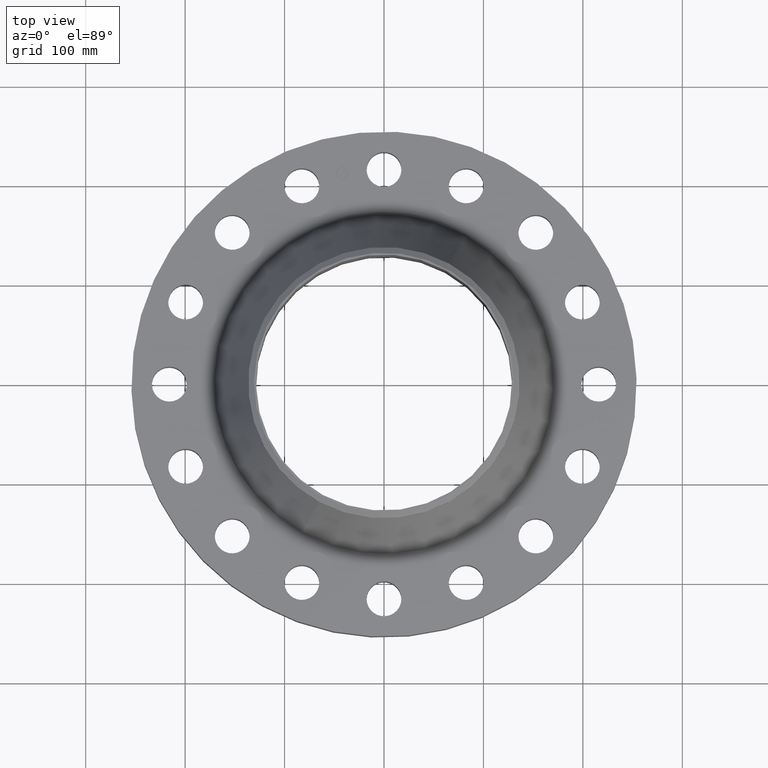
[diagram: clean part render]
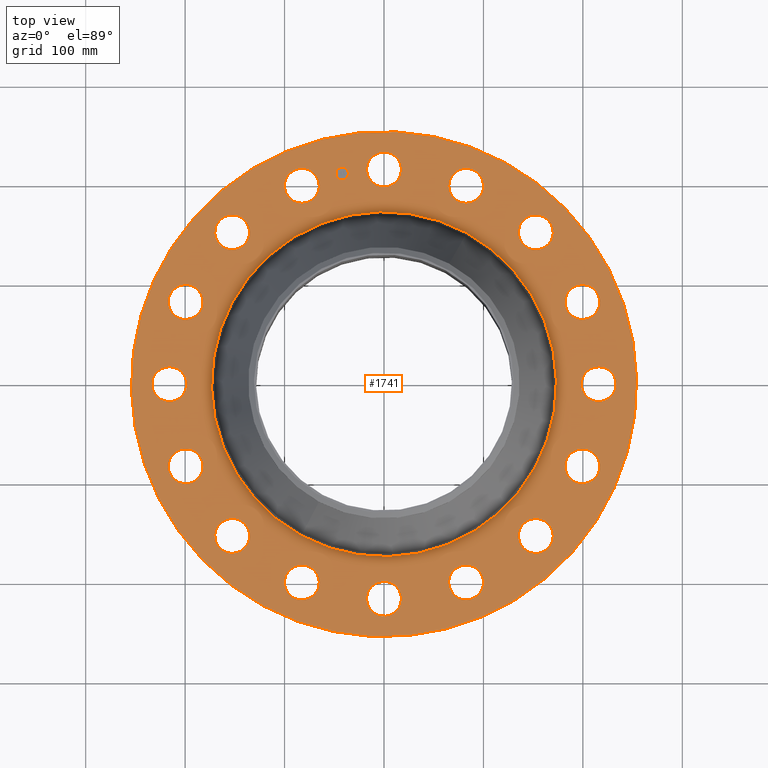
[diagram: same view with one face highlighted and labeled with its STEP entity id]
A machine part, top view. The second image highlights one B-rep face of the part: STEP entity #1741.
In plain terms, the highlighted planar face has unit normal (0, 0, -1).
Its self-contained STEP definition (entity closure, byte-faithful):
#65=AXIS2_PLACEMENT_3D('Circle Axis2P3D',#63,#64,$) ;
#82=AXIS2_PLACEMENT_3D('Circle Axis2P3D',#80,#81,$) ;
#115=AXIS2_PLACEMENT_3D('Circle Axis2P3D',#113,#114,$) ;
#139=AXIS2_PLACEMENT_3D('Circle Axis2P3D',#137,#138,$) ;
#156=AXIS2_PLACEMENT_3D('Circle Axis2P3D',#154,#155,$) ;
#191=AXIS2_PLACEMENT_3D('Circle Axis2P3D',#189,#190,$) ;
#790=AXIS2_PLACEMENT_3D('Circle Axis2P3D',#788,#789,$) ;
#802=AXIS2_PLACEMENT_3D('Circle Axis2P3D',#800,#801,$) ;
#833=AXIS2_PLACEMENT_3D('Circle Axis2P3D',#831,#832,$) ;
#845=AXIS2_PLACEMENT_3D('Circle Axis2P3D',#843,#844,$) ;
#876=AXIS2_PLACEMENT_3D('Circle Axis2P3D',#874,#875,$) ;
#888=AXIS2_PLACEMENT_3D('Circle Axis2P3D',#886,#887,$) ;
#919=AXIS2_PLACEMENT_3D('Circle Axis2P3D',#917,#918,$) ;
#931=AXIS2_PLACEMENT_3D('Circle Axis2P3D',#929,#930,$) ;
#962=AXIS2_PLACEMENT_3D('Circle Axis2P3D',#960,#961,$) ;
#974=AXIS2_PLACEMENT_3D('Circle Axis2P3D',#972,#973,$) ;
#1005=AXIS2_PLACEMENT_3D('Circle Axis2P3D',#1003,#1004,$) ;
#1017=AXIS2_PLACEMENT_3D('Circle Axis2P3D',#1015,#1016,$) ;
#1048=AXIS2_PLACEMENT_3D('Circle Axis2P3D',#1046,#1047,$) ;
#1060=AXIS2_PLACEMENT_3D('Circle Axis2P3D',#1058,#1059,$) ;
#1091=AXIS2_PLACEMENT_3D('Circle Axis2P3D',#1089,#1090,$) ;
#1103=AXIS2_PLACEMENT_3D('Circle Axis2P3D',#1101,#1102,$) ;
#1134=AXIS2_PLACEMENT_3D('Circle Axis2P3D',#1132,#1133,$) ;
#1146=AXIS2_PLACEMENT_3D('Circle Axis2P3D',#1144,#1145,$) ;
#1177=AXIS2_PLACEMENT_3D('Circle Axis2P3D',#1175,#1176,$) ;
#1189=AXIS2_PLACEMENT_3D('Circle Axis2P3D',#1187,#1188,$) ;
#1220=AXIS2_PLACEMENT_3D('Circle Axis2P3D',#1218,#1219,$) ;
#1232=AXIS2_PLACEMENT_3D('Circle Axis2P3D',#1230,#1231,$) ;
#1263=AXIS2_PLACEMENT_3D('Circle Axis2P3D',#1261,#1262,$) ;
#1275=AXIS2_PLACEMENT_3D('Circle Axis2P3D',#1273,#1274,$) ;
#1306=AXIS2_PLACEMENT_3D('Circle Axis2P3D',#1304,#1305,$) ;
#1318=AXIS2_PLACEMENT_3D('Circle Axis2P3D',#1316,#1317,$) ;
#1349=AXIS2_PLACEMENT_3D('Circle Axis2P3D',#1347,#1348,$) ;
#1361=AXIS2_PLACEMENT_3D('Circle Axis2P3D',#1359,#1360,$) ;
#1392=AXIS2_PLACEMENT_3D('Circle Axis2P3D',#1390,#1391,$) ;
#1404=AXIS2_PLACEMENT_3D('Circle Axis2P3D',#1402,#1403,$) ;
#1649=AXIS2_PLACEMENT_3D('Plane Axis2P3D',#1646,#1647,#1648) ;
#1725=AXIS2_PLACEMENT_3D('Circle Axis2P3D',#1723,#1724,$) ;
#1734=AXIS2_PLACEMENT_3D('Circle Axis2P3D',#1732,#1733,$) ;
#46=CARTESIAN_POINT('Vertex',(-0.605531967707,8.83080362167,2.50000000001)) ;
#60=CARTESIAN_POINT('Vertex',(0.605531967707,8.1691963784,2.50000000001)) ;
#63=CARTESIAN_POINT('Axis2P3D Location',(0.,8.50000000003,2.50000000001)) ;
#80=CARTESIAN_POINT('Axis2P3D Location',(0.,8.50000000003,2.50000000001)) ;
#110=CARTESIAN_POINT('Vertex',(-4.79425538606,-8.77582561894,2.50000000001)) ;
#113=CARTESIAN_POINT('Axis2P3D Location',(0.,0.,2.50000000001)) ;
#117=CARTESIAN_POINT('Vertex',(4.79425538606,8.77582561894,2.50000000001)) ;
#137=CARTESIAN_POINT('Axis2P3D Location',(0.,0.,2.50000000001)) ;
#154=CARTESIAN_POINT('Axis2P3D Location',(0.,0.,2.50000000001)) ;
#158=CARTESIAN_POINT('Vertex',(3.27348511467,5.99207430962,2.50000000001)) ;
#160=CARTESIAN_POINT('Vertex',(-3.27348511467,-5.99207430962,2.50000000001)) ;
#189=CARTESIAN_POINT('Axis2P3D Location',(0.,0.,2.50000000001)) ;
#778=CARTESIAN_POINT('Vertex',(-2.81996364924,-8.3903257735,2.50000000001)) ;
#785=CARTESIAN_POINT('Vertex',(-3.68565470099,-7.31562627926,2.50000000001)) ;
#788=CARTESIAN_POINT('Axis2P3D Location',(-3.25280917512,-7.85297602638,2.50000000001)) ;
#800=CARTESIAN_POINT('Axis2P3D Location',(-3.25280917512,-7.85297602638,2.50000000001)) ;
#821=CARTESIAN_POINT('Vertex',(5.81614536362,6.6724968848,2.50000000001)) ;
#828=CARTESIAN_POINT('Vertex',(6.2046699166,5.34831839542,2.50000000001)) ;
#831=CARTESIAN_POINT('Axis2P3D Location',(6.01040764011,6.01040764011,2.50000000001)) ;
#843=CARTESIAN_POINT('Axis2P3D Location',(6.01040764011,6.01040764011,2.50000000001)) ;
#864=CARTESIAN_POINT('Vertex',(-5.81614536362,-6.6724968848,2.50000000001)) ;
#871=CARTESIAN_POINT('Vertex',(-6.2046699166,-5.34831839542,2.50000000001)) ;
#874=CARTESIAN_POINT('Axis2P3D Location',(-6.01040764011,-6.01040764011,2.50000000001)) ;
#886=CARTESIAN_POINT('Axis2P3D Location',(-6.01040764011,-6.01040764011,2.50000000001)) ;
#907=CARTESIAN_POINT('Vertex',(7.92687166988,3.93884083173,2.50000000001)) ;
#914=CARTESIAN_POINT('Vertex',(7.77908038287,2.5667775185,2.50000000001)) ;
#917=CARTESIAN_POINT('Axis2P3D Location',(7.85297602638,3.25280917512,2.50000000001)) ;
#929=CARTESIAN_POINT('Axis2P3D Location',(7.85297602638,3.25280917512,2.50000000001)) ;
#950=CARTESIAN_POINT('Vertex',(-7.92687166988,-3.93884083173,2.50000000001)) ;
#957=CARTESIAN_POINT('Vertex',(-7.77908038287,-2.5667775185,2.50000000001)) ;
#960=CARTESIAN_POINT('Axis2P3D Location',(-7.85297602638,-3.25280917512,2.50000000001)) ;
#972=CARTESIAN_POINT('Axis2P3D Location',(-7.85297602638,-3.25280917512,2.50000000001)) ;
#993=CARTESIAN_POINT('Vertex',(8.83080362167,0.605531967707,2.50000000001)) ;
#1000=CARTESIAN_POINT('Vertex',(8.1691963784,-0.605531967707,2.50000000001)) ;
#1003=CARTESIAN_POINT('Axis2P3D Location',(8.50000000003,5.2047488964E-016,2.50000000001)) ;
#1015=CARTESIAN_POINT('Axis2P3D Location',(8.50000000003,5.2047488964E-016,2.50000000001)) ;
#1036=CARTESIAN_POINT('Vertex',(-8.83080362167,-0.605531967707,2.50000000001)) ;
#1043=CARTESIAN_POINT('Vertex',(-8.1691963784,0.605531967707,2.50000000001)) ;
#1046=CARTESIAN_POINT('Axis2P3D Location',(-8.50000000003,-1.56142466892E-015,2.50000000001)) ;
#1058=CARTESIAN_POINT('Axis2P3D Location',(-8.50000000003,-1.56142466892E-015,2.50000000001)) ;
#1079=CARTESIAN_POINT('Vertex',(8.3903257735,-2.81996364924,2.50000000001)) ;
#1086=CARTESIAN_POINT('Vertex',(7.31562627926,-3.68565470099,2.50000000001)) ;
#1089=CARTESIAN_POINT('Axis2P3D Location',(7.85297602638,-3.25280917512,2.50000000001)) ;
#1101=CARTESIAN_POINT('Axis2P3D Location',(7.85297602638,-3.25280917512,2.50000000001)) ;
#1122=CARTESIAN_POINT('Vertex',(-8.3903257735,2.81996364924,2.50000000001)) ;
#1129=CARTESIAN_POINT('Vertex',(-7.31562627926,3.68565470099,2.50000000001)) ;
#1132=CARTESIAN_POINT('Axis2P3D Location',(-7.85297602638,3.25280917512,2.50000000001)) ;
#1144=CARTESIAN_POINT('Axis2P3D Location',(-7.85297602638,3.25280917512,2.50000000001)) ;
#1165=CARTESIAN_POINT('Vertex',(6.6724968848,-5.81614536362,2.50000000001)) ;
#1172=CARTESIAN_POINT('Vertex',(5.34831839542,-6.2046699166,2.50000000001)) ;
#1175=CARTESIAN_POINT('Axis2P3D Location',(6.01040764011,-6.01040764011,2.50000000001)) ;
#1187=CARTESIAN_POINT('Axis2P3D Location',(6.01040764011,-6.01040764011,2.50000000001)) ;
#1208=CARTESIAN_POINT('Vertex',(-6.6724968848,5.81614536362,2.50000000001)) ;
#1215=CARTESIAN_POINT('Vertex',(-5.34831839542,6.2046699166,2.50000000001)) ;
#1218=CARTESIAN_POINT('Axis2P3D Location',(-6.01040764011,6.01040764011,2.50000000001)) ;
#1230=CARTESIAN_POINT('Axis2P3D Location',(-6.01040764011,6.01040764011,2.50000000001)) ;
#1251=CARTESIAN_POINT('Vertex',(3.93884083173,-7.92687166988,2.50000000001)) ;
#1258=CARTESIAN_POINT('Vertex',(2.5667775185,-7.77908038287,2.50000000001)) ;
#1261=CARTESIAN_POINT('Axis2P3D Location',(3.25280917512,-7.85297602638,2.50000000001)) ;
#1273=CARTESIAN_POINT('Axis2P3D Location',(3.25280917512,-7.85297602638,2.50000000001)) ;
#1294=CARTESIAN_POINT('Vertex',(-3.93884083173,7.92687166988,2.50000000001)) ;
#1301=CARTESIAN_POINT('Vertex',(-2.5667775185,7.77908038287,2.50000000001)) ;
#1304=CARTESIAN_POINT('Axis2P3D Location',(-3.25280917512,7.85297602638,2.50000000001)) ;
#1316=CARTESIAN_POINT('Axis2P3D Location',(-3.25280917512,7.85297602638,2.50000000001)) ;
#1337=CARTESIAN_POINT('Vertex',(0.605531967707,-8.83080362167,2.50000000001)) ;
#1344=CARTESIAN_POINT('Vertex',(-0.605531967707,-8.1691963784,2.50000000001)) ;
#1347=CARTESIAN_POINT('Axis2P3D Location',(1.04094977928E-015,-8.50000000003,2.50000000001)) ;
#1359=CARTESIAN_POINT('Axis2P3D Location',(1.04094977928E-015,-8.50000000003,2.50000000001)) ;
#1380=CARTESIAN_POINT('Vertex',(2.81996364924,8.3903257735,2.50000000001)) ;
#1387=CARTESIAN_POINT('Vertex',(3.68565470099,7.31562627926,2.50000000001)) ;
#1390=CARTESIAN_POINT('Axis2P3D Location',(3.25280917512,7.85297602638,2.50000000001)) ;
#1402=CARTESIAN_POINT('Axis2P3D Location',(3.25280917512,7.85297602638,2.50000000001)) ;
#1646=CARTESIAN_POINT('Axis2P3D Location',(0.,10.,2.50000000001)) ;
#1723=CARTESIAN_POINT('Axis2P3D Location',(-1.65826773714,8.33667488346,2.50000000001)) ;
#1727=CARTESIAN_POINT('Vertex',(-1.90101209404,8.28839002876,2.50000000001)) ;
#1729=CARTESIAN_POINT('Vertex',(-1.41552338024,8.38495973816,2.50000000001)) ;
#1732=CARTESIAN_POINT('Axis2P3D Location',(-1.65826773714,8.33667488346,2.50000000001)) ;
#64=DIRECTION('Axis2P3D Direction',(0.,-0.,-0.0393700787402)) ;
#81=DIRECTION('Axis2P3D Direction',(0.,-0.,-0.0393700787402)) ;
#114=DIRECTION('Axis2P3D Direction',(0.,0.,-0.0393700787402)) ;
#138=DIRECTION('Axis2P3D Direction',(0.,0.,-0.0393700787402)) ;
#155=DIRECTION('Axis2P3D Direction',(0.,0.,-0.0393700787402)) ;
#190=DIRECTION('Axis2P3D Direction',(0.,0.,-0.0393700787402)) ;
#789=DIRECTION('Axis2P3D Direction',(0.,0.,-0.0393700787402)) ;
#801=DIRECTION('Axis2P3D Direction',(0.,0.,-0.0393700787402)) ;
#832=DIRECTION('Axis2P3D Direction',(0.,-0.,-0.0393700787402)) ;
#844=DIRECTION('Axis2P3D Direction',(0.,-0.,-0.0393700787402)) ;
#875=DIRECTION('Axis2P3D Direction',(0.,0.,-0.0393700787402)) ;
#887=DIRECTION('Axis2P3D Direction',(0.,0.,-0.0393700787402)) ;
#918=DIRECTION('Axis2P3D Direction',(0.,-0.,-0.0393700787402)) ;
#930=DIRECTION('Axis2P3D Direction',(0.,-0.,-0.0393700787402)) ;
#961=DIRECTION('Axis2P3D Direction',(0.,0.,-0.0393700787402)) ;
#973=DIRECTION('Axis2P3D Direction',(0.,0.,-0.0393700787402)) ;
#1004=DIRECTION('Axis2P3D Direction',(0.,-0.,-0.0393700787402)) ;
#1016=DIRECTION('Axis2P3D Direction',(0.,-0.,-0.0393700787402)) ;
#1047=DIRECTION('Axis2P3D Direction',(0.,0.,-0.0393700787402)) ;
#1059=DIRECTION('Axis2P3D Direction',(0.,0.,-0.0393700787402)) ;
#1090=DIRECTION('Axis2P3D Direction',(-0.,0.,-0.0393700787402)) ;
#1102=DIRECTION('Axis2P3D Direction',(-0.,0.,-0.0393700787402)) ;
#1133=DIRECTION('Axis2P3D Direction',(0.,0.,-0.0393700787402)) ;
#1145=DIRECTION('Axis2P3D Direction',(0.,0.,-0.0393700787402)) ;
#1176=DIRECTION('Axis2P3D Direction',(-0.,0.,-0.0393700787402)) ;
#1188=DIRECTION('Axis2P3D Direction',(-0.,0.,-0.0393700787402)) ;
#1219=DIRECTION('Axis2P3D Direction',(0.,0.,-0.0393700787402)) ;
#1231=DIRECTION('Axis2P3D Direction',(0.,0.,-0.0393700787402)) ;
#1262=DIRECTION('Axis2P3D Direction',(-0.,0.,-0.0393700787402)) ;
#1274=DIRECTION('Axis2P3D Direction',(-0.,0.,-0.0393700787402)) ;
#1305=DIRECTION('Axis2P3D Direction',(0.,0.,-0.0393700787402)) ;
#1317=DIRECTION('Axis2P3D Direction',(0.,0.,-0.0393700787402)) ;
#1348=DIRECTION('Axis2P3D Direction',(-0.,0.,-0.0393700787402)) ;
#1360=DIRECTION('Axis2P3D Direction',(-0.,0.,-0.0393700787402)) ;
#1391=DIRECTION('Axis2P3D Direction',(0.,-0.,-0.0393700787402)) ;
#1403=DIRECTION('Axis2P3D Direction',(0.,-0.,-0.0393700787402)) ;
#1647=DIRECTION('Axis2P3D Direction',(0.,0.,-0.0393700787402)) ;
#1648=DIRECTION('Axis2P3D XDirection',(0.0393700787402,0.,0.)) ;
#1724=DIRECTION('Axis2P3D Direction',(0.,0.,-0.0393700787402)) ;
#1733=DIRECTION('Axis2P3D Direction',(0.,0.,-0.0393700787402)) ;
#1652=ORIENTED_EDGE('',*,*,#141,.F.) ;
#1653=ORIENTED_EDGE('',*,*,#119,.F.) ;
#1656=ORIENTED_EDGE('',*,*,#67,.T.) ;
#1657=ORIENTED_EDGE('',*,*,#84,.T.) ;
#1660=ORIENTED_EDGE('',*,*,#193,.T.) ;
#1661=ORIENTED_EDGE('',*,*,#162,.T.) ;
#1664=ORIENTED_EDGE('',*,*,#1406,.T.) ;
#1665=ORIENTED_EDGE('',*,*,#1394,.T.) ;
#1668=ORIENTED_EDGE('',*,*,#847,.T.) ;
#1669=ORIENTED_EDGE('',*,*,#835,.T.) ;
#1672=ORIENTED_EDGE('',*,*,#933,.T.) ;
#1673=ORIENTED_EDGE('',*,*,#921,.T.) ;
#1676=ORIENTED_EDGE('',*,*,#1019,.T.) ;
#1677=ORIENTED_EDGE('',*,*,#1007,.T.) ;
#1680=ORIENTED_EDGE('',*,*,#1105,.T.) ;
#1681=ORIENTED_EDGE('',*,*,#1093,.T.) ;
#1684=ORIENTED_EDGE('',*,*,#1191,.T.) ;
#1685=ORIENTED_EDGE('',*,*,#1179,.T.) ;
#1688=ORIENTED_EDGE('',*,*,#1277,.T.) ;
#1689=ORIENTED_EDGE('',*,*,#1265,.T.) ;
#1692=ORIENTED_EDGE('',*,*,#1363,.T.) ;
#1693=ORIENTED_EDGE('',*,*,#1351,.T.) ;
#1696=ORIENTED_EDGE('',*,*,#804,.T.) ;
#1697=ORIENTED_EDGE('',*,*,#792,.T.) ;
#1700=ORIENTED_EDGE('',*,*,#890,.T.) ;
#1701=ORIENTED_EDGE('',*,*,#878,.T.) ;
#1704=ORIENTED_EDGE('',*,*,#976,.T.) ;
#1705=ORIENTED_EDGE('',*,*,#964,.T.) ;
#1708=ORIENTED_EDGE('',*,*,#1062,.T.) ;
#1709=ORIENTED_EDGE('',*,*,#1050,.T.) ;
#1712=ORIENTED_EDGE('',*,*,#1148,.T.) ;
#1713=ORIENTED_EDGE('',*,*,#1136,.T.) ;
#1716=ORIENTED_EDGE('',*,*,#1234,.T.) ;
#1717=ORIENTED_EDGE('',*,*,#1222,.T.) ;
#1720=ORIENTED_EDGE('',*,*,#1320,.T.) ;
#1721=ORIENTED_EDGE('',*,*,#1308,.T.) ;
#1738=ORIENTED_EDGE('',*,*,#1731,.T.) ;
#1739=ORIENTED_EDGE('',*,*,#1736,.T.) ;
#1658=FACE_BOUND('',#1655,.T.) ;
#1662=FACE_BOUND('',#1659,.T.) ;
#1666=FACE_BOUND('',#1663,.T.) ;
#1670=FACE_BOUND('',#1667,.T.) ;
#1674=FACE_BOUND('',#1671,.T.) ;
#1678=FACE_BOUND('',#1675,.T.) ;
#1682=FACE_BOUND('',#1679,.T.) ;
#1686=FACE_BOUND('',#1683,.T.) ;
#1690=FACE_BOUND('',#1687,.T.) ;
#1694=FACE_BOUND('',#1691,.T.) ;
#1698=FACE_BOUND('',#1695,.T.) ;
#1702=FACE_BOUND('',#1699,.T.) ;
#1706=FACE_BOUND('',#1703,.T.) ;
#1710=FACE_BOUND('',#1707,.T.) ;
#1714=FACE_BOUND('',#1711,.T.) ;
#1718=FACE_BOUND('',#1715,.T.) ;
#1722=FACE_BOUND('',#1719,.T.) ;
#1740=FACE_BOUND('',#1737,.T.) ;
#1741=ADVANCED_FACE('PartBody',(#1654,#1658,#1662,#1666,#1670,#1674,#1678,#1682,#1686,#1690,#1694,#1698,#1702,#1706,#1710,#1714,#1718,#1722,#1740),#1650,.F.) ;
#66=CIRCLE('generated circle',#65,0.690000000003) ;
#83=CIRCLE('generated circle',#82,0.690000000003) ;
#116=CIRCLE('generated circle',#115,10.) ;
#140=CIRCLE('generated circle',#139,10.) ;
#157=CIRCLE('generated circle',#156,6.82793228789) ;
#192=CIRCLE('generated circle',#191,6.82793228789) ;
#791=CIRCLE('generated circle',#790,0.690000000003) ;
#803=CIRCLE('generated circle',#802,0.690000000003) ;
#834=CIRCLE('generated circle',#833,0.690000000003) ;
#846=CIRCLE('generated circle',#845,0.690000000003) ;
#877=CIRCLE('generated circle',#876,0.690000000003) ;
#889=CIRCLE('generated circle',#888,0.690000000003) ;
#920=CIRCLE('generated circle',#919,0.690000000003) ;
#932=CIRCLE('generated circle',#931,0.690000000003) ;
#963=CIRCLE('generated circle',#962,0.690000000003) ;
#975=CIRCLE('generated circle',#974,0.690000000003) ;
#1006=CIRCLE('generated circle',#1005,0.690000000003) ;
#1018=CIRCLE('generated circle',#1017,0.690000000003) ;
#1049=CIRCLE('generated circle',#1048,0.690000000003) ;
#1061=CIRCLE('generated circle',#1060,0.690000000003) ;
#1092=CIRCLE('generated circle',#1091,0.690000000003) ;
#1104=CIRCLE('generated circle',#1103,0.690000000003) ;
#1135=CIRCLE('generated circle',#1134,0.690000000003) ;
#1147=CIRCLE('generated circle',#1146,0.690000000003) ;
#1178=CIRCLE('generated circle',#1177,0.690000000003) ;
#1190=CIRCLE('generated circle',#1189,0.690000000003) ;
#1221=CIRCLE('generated circle',#1220,0.690000000003) ;
#1233=CIRCLE('generated circle',#1232,0.690000000003) ;
#1264=CIRCLE('generated circle',#1263,0.690000000003) ;
#1276=CIRCLE('generated circle',#1275,0.690000000003) ;
#1307=CIRCLE('generated circle',#1306,0.690000000003) ;
#1319=CIRCLE('generated circle',#1318,0.690000000003) ;
#1350=CIRCLE('generated circle',#1349,0.690000000003) ;
#1362=CIRCLE('generated circle',#1361,0.690000000003) ;
#1393=CIRCLE('generated circle',#1392,0.690000000003) ;
#1405=CIRCLE('generated circle',#1404,0.690000000003) ;
#1726=CIRCLE('generated circle',#1725,0.247500000001) ;
#1735=CIRCLE('generated circle',#1734,0.247500000001) ;
#67=EDGE_CURVE('',#47,#61,#66,.T.) ;
#84=EDGE_CURVE('',#61,#47,#83,.T.) ;
#119=EDGE_CURVE('',#111,#118,#116,.T.) ;
#141=EDGE_CURVE('',#118,#111,#140,.T.) ;
#162=EDGE_CURVE('',#159,#161,#157,.T.) ;
#193=EDGE_CURVE('',#161,#159,#192,.T.) ;
#792=EDGE_CURVE('',#779,#786,#791,.T.) ;
#804=EDGE_CURVE('',#786,#779,#803,.T.) ;
#835=EDGE_CURVE('',#822,#829,#834,.T.) ;
#847=EDGE_CURVE('',#829,#822,#846,.T.) ;
#878=EDGE_CURVE('',#865,#872,#877,.T.) ;
#890=EDGE_CURVE('',#872,#865,#889,.T.) ;
#921=EDGE_CURVE('',#908,#915,#920,.T.) ;
#933=EDGE_CURVE('',#915,#908,#932,.T.) ;
#964=EDGE_CURVE('',#951,#958,#963,.T.) ;
#976=EDGE_CURVE('',#958,#951,#975,.T.) ;
#1007=EDGE_CURVE('',#994,#1001,#1006,.T.) ;
#1019=EDGE_CURVE('',#1001,#994,#1018,.T.) ;
#1050=EDGE_CURVE('',#1037,#1044,#1049,.T.) ;
#1062=EDGE_CURVE('',#1044,#1037,#1061,.T.) ;
#1093=EDGE_CURVE('',#1080,#1087,#1092,.T.) ;
#1105=EDGE_CURVE('',#1087,#1080,#1104,.T.) ;
#1136=EDGE_CURVE('',#1123,#1130,#1135,.T.) ;
#1148=EDGE_CURVE('',#1130,#1123,#1147,.T.) ;
#1179=EDGE_CURVE('',#1166,#1173,#1178,.T.) ;
#1191=EDGE_CURVE('',#1173,#1166,#1190,.T.) ;
#1222=EDGE_CURVE('',#1209,#1216,#1221,.T.) ;
#1234=EDGE_CURVE('',#1216,#1209,#1233,.T.) ;
#1265=EDGE_CURVE('',#1252,#1259,#1264,.T.) ;
#1277=EDGE_CURVE('',#1259,#1252,#1276,.T.) ;
#1308=EDGE_CURVE('',#1295,#1302,#1307,.T.) ;
#1320=EDGE_CURVE('',#1302,#1295,#1319,.T.) ;
#1351=EDGE_CURVE('',#1338,#1345,#1350,.T.) ;
#1363=EDGE_CURVE('',#1345,#1338,#1362,.T.) ;
#1394=EDGE_CURVE('',#1381,#1388,#1393,.T.) ;
#1406=EDGE_CURVE('',#1388,#1381,#1405,.T.) ;
#1731=EDGE_CURVE('',#1728,#1730,#1726,.T.) ;
#1736=EDGE_CURVE('',#1730,#1728,#1735,.T.) ;
#1651=EDGE_LOOP('',(#1652,#1653)) ;
#1655=EDGE_LOOP('',(#1656,#1657)) ;
#1659=EDGE_LOOP('',(#1660,#1661)) ;
#1663=EDGE_LOOP('',(#1664,#1665)) ;
#1667=EDGE_LOOP('',(#1668,#1669)) ;
#1671=EDGE_LOOP('',(#1672,#1673)) ;
#1675=EDGE_LOOP('',(#1676,#1677)) ;
#1679=EDGE_LOOP('',(#1680,#1681)) ;
#1683=EDGE_LOOP('',(#1684,#1685)) ;
#1687=EDGE_LOOP('',(#1688,#1689)) ;
#1691=EDGE_LOOP('',(#1692,#1693)) ;
#1695=EDGE_LOOP('',(#1696,#1697)) ;
#1699=EDGE_LOOP('',(#1700,#1701)) ;
#1703=EDGE_LOOP('',(#1704,#1705)) ;
#1707=EDGE_LOOP('',(#1708,#1709)) ;
#1711=EDGE_LOOP('',(#1712,#1713)) ;
#1715=EDGE_LOOP('',(#1716,#1717)) ;
#1719=EDGE_LOOP('',(#1720,#1721)) ;
#1737=EDGE_LOOP('',(#1738,#1739)) ;
#1654=FACE_OUTER_BOUND('',#1651,.T.) ;
#1650=PLANE('',#1649) ;
#47=VERTEX_POINT('',#46) ;
#61=VERTEX_POINT('',#60) ;
#111=VERTEX_POINT('',#110) ;
#118=VERTEX_POINT('',#117) ;
#159=VERTEX_POINT('',#158) ;
#161=VERTEX_POINT('',#160) ;
#779=VERTEX_POINT('',#778) ;
#786=VERTEX_POINT('',#785) ;
#822=VERTEX_POINT('',#821) ;
#829=VERTEX_POINT('',#828) ;
#865=VERTEX_POINT('',#864) ;
#872=VERTEX_POINT('',#871) ;
#908=VERTEX_POINT('',#907) ;
#915=VERTEX_POINT('',#914) ;
#951=VERTEX_POINT('',#950) ;
#958=VERTEX_POINT('',#957) ;
#994=VERTEX_POINT('',#993) ;
#1001=VERTEX_POINT('',#1000) ;
#1037=VERTEX_POINT('',#1036) ;
#1044=VERTEX_POINT('',#1043) ;
#1080=VERTEX_POINT('',#1079) ;
#1087=VERTEX_POINT('',#1086) ;
#1123=VERTEX_POINT('',#1122) ;
#1130=VERTEX_POINT('',#1129) ;
#1166=VERTEX_POINT('',#1165) ;
#1173=VERTEX_POINT('',#1172) ;
#1209=VERTEX_POINT('',#1208) ;
#1216=VERTEX_POINT('',#1215) ;
#1252=VERTEX_POINT('',#1251) ;
#1259=VERTEX_POINT('',#1258) ;
#1295=VERTEX_POINT('',#1294) ;
#1302=VERTEX_POINT('',#1301) ;
#1338=VERTEX_POINT('',#1337) ;
#1345=VERTEX_POINT('',#1344) ;
#1381=VERTEX_POINT('',#1380) ;
#1388=VERTEX_POINT('',#1387) ;
#1728=VERTEX_POINT('',#1727) ;
#1730=VERTEX_POINT('',#1729) ;